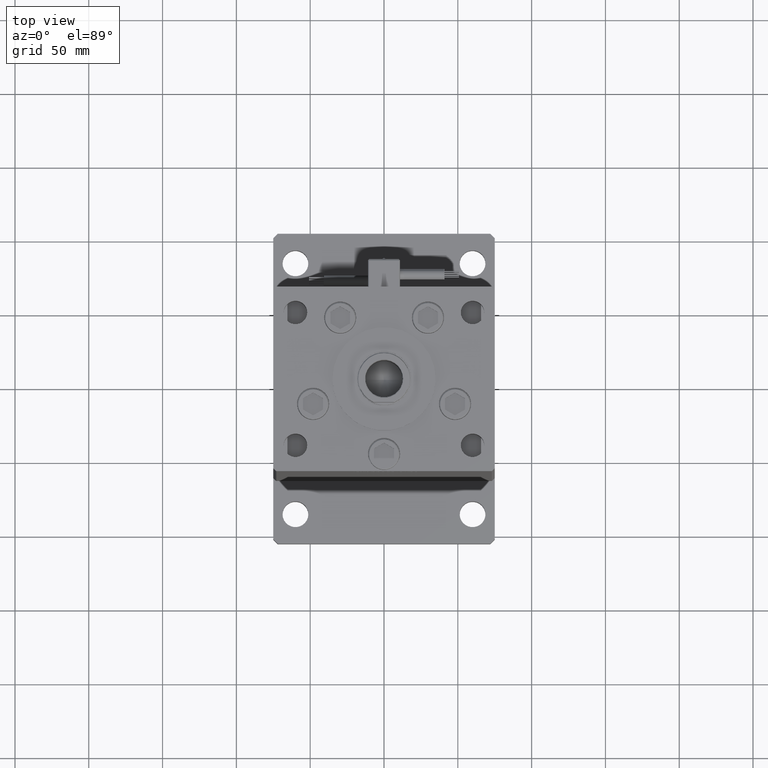
[diagram: clean part render]
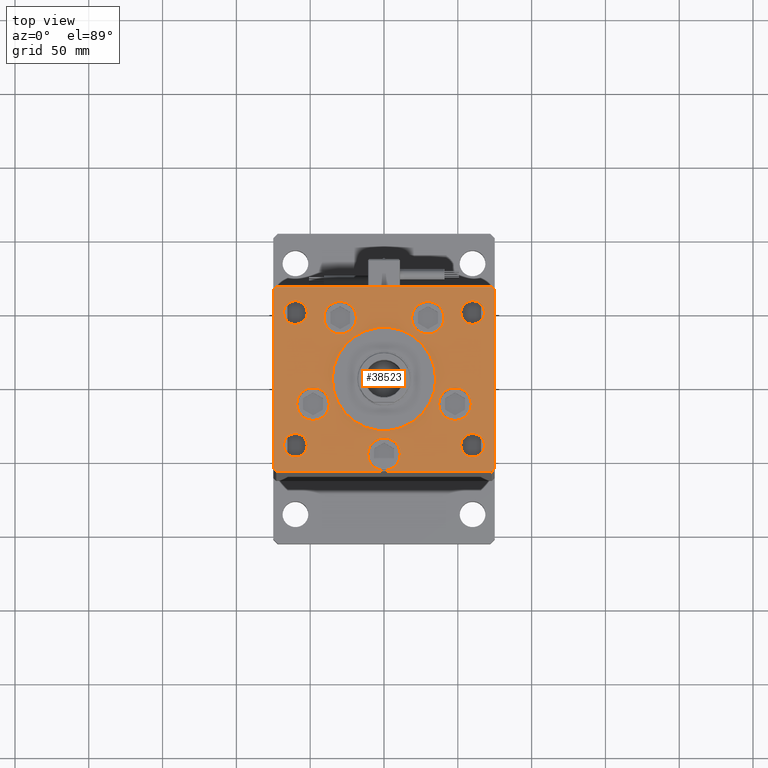
[diagram: same view with one face highlighted and labeled with its STEP entity id]
A machine part, top view. The second image highlights one B-rep face of the part: STEP entity #38523.
In plain terms, the highlighted planar face has unit normal (0, 0, 1).
Its self-contained STEP definition (entity closure, byte-faithful):
#758 = ORIENTED_EDGE ( 'NONE', *, *, #56208, .T. ) ;
#818 = ORIENTED_EDGE ( 'NONE', *, *, #35380, .F. ) ;
#835 = CARTESIAN_POINT ( 'NONE',  ( 52.00000000000000000, -45.00000000000000000, 0.000000000000000000 ) ) ;
#949 = CARTESIAN_POINT ( 'NONE',  ( 11.00000000000000000, -51.00000000000000000, 0.000000000000000000 ) ) ;
#1293 = DIRECTION ( 'NONE',  ( 1.000000000000000000, 0.000000000000000000, 0.000000000000000000 ) ) ;
#1440 = LINE ( 'NONE', #18929, #15699 ) ;
#1543 = VERTEX_POINT ( 'NONE', #51604 ) ;
#1990 = EDGE_LOOP ( 'NONE', ( #51308, #6658 ) ) ;
#2555 = CARTESIAN_POINT ( 'NONE',  ( 18.73102073172061921, 41.43749999999997868, 0.000000000000000000 ) ) ;
#2617 = DIRECTION ( 'NONE',  ( 1.000000000000000000, 0.000000000000000000, 0.000000000000000000 ) ) ;
#2886 = EDGE_CURVE ( 'NONE', #8877, #55956, #22621, .T. ) ;
#3053 = EDGE_CURVE ( 'NONE', #32373, #4239, #26296, .T. ) ;
#3585 = CARTESIAN_POINT ( 'NONE',  ( -37.08326112068522917, -16.99999999999998934, 0.000000000000000000 ) ) ;
#3733 = VERTEX_POINT ( 'NONE', #33363 ) ;
#3745 = DIRECTION ( 'NONE',  ( 0.000000000000000000, 0.000000000000000000, 1.000000000000000000 ) ) ;
#3914 = DIRECTION ( 'NONE',  ( -0.7071067811865524577, 0.7071067811865426878, 0.000000000000000000 ) ) ;
#3916 = VECTOR ( 'NONE', #5568, 1000.000000000000114 ) ;
#3939 = VECTOR ( 'NONE', #30872, 999.9999999999998863 ) ;
#3981 = CARTESIAN_POINT ( 'NONE',  ( -48.08326112068523628, -16.99999999999998934, 0.000000000000000000 ) ) ;
#4239 = VERTEX_POINT ( 'NONE', #32583 ) ;
#4536 = DIRECTION ( 'NONE',  ( 0.000000000000000000, 0.000000000000000000, 1.000000000000000000 ) ) ;
#5568 = DIRECTION ( 'NONE',  ( 0.7071067811865474617, -0.7071067811865474617, 0.000000000000000000 ) ) ;
#5718 = DIRECTION ( 'NONE',  ( -0.000000000000000000, -0.000000000000000000, -1.000000000000000000 ) ) ;
#6478 = CARTESIAN_POINT ( 'NONE',  ( -59.08326112068523628, -16.99999999999998934, 0.000000000000000000 ) ) ;
#6521 = EDGE_LOOP ( 'NONE', ( #36795, #47294 ) ) ;
#6658 = ORIENTED_EDGE ( 'NONE', *, *, #37203, .F. ) ;
#6672 = DIRECTION ( 'NONE',  ( 1.000000000000000000, 0.000000000000000000, 0.000000000000000000 ) ) ;
#6683 = EDGE_CURVE ( 'NONE', #15116, #26562, #36676, .T. ) ;
#7123 = CARTESIAN_POINT ( 'NONE',  ( -60.00000000000000711, -45.00000000000000000, 0.000000000000000000 ) ) ;
#7825 = EDGE_CURVE ( 'NONE', #34325, #54697, #34695, .T. ) ;
#8105 = CARTESIAN_POINT ( 'NONE',  ( 35.00000000000000711, -2.652630106891490698E-15, 0.000000000000000000 ) ) ;
#8255 = CARTESIAN_POINT ( 'NONE',  ( 73.00000000000001421, -62.49999999999991473, 0.000000000000000000 ) ) ;
#8545 = CIRCLE ( 'NONE', #56111, 11.00000000000000000 ) ;
#8877 = VERTEX_POINT ( 'NONE', #2555 ) ;
#9293 = EDGE_LOOP ( 'NONE', ( #44743, #33886 ) ) ;
#9300 = CARTESIAN_POINT ( 'NONE',  ( -75.00000000000000000, -60.50000000000004263, 0.000000000000000000 ) ) ;
#9452 = ORIENTED_EDGE ( 'NONE', *, *, #17382, .T. ) ;
#9572 = VERTEX_POINT ( 'NONE', #11586 ) ;
#9763 = DIRECTION ( 'NONE',  ( 0.000000000000000000, 0.000000000000000000, 1.000000000000000000 ) ) ;
#9867 = DIRECTION ( 'NONE',  ( 0.000000000000000000, 0.000000000000000000, 1.000000000000000000 ) ) ;
#10285 = DIRECTION ( 'NONE',  ( 1.000000000000000000, 0.000000000000000000, 0.000000000000000000 ) ) ;
#10360 = DIRECTION ( 'NONE',  ( -0.000000000000000000, -0.000000000000000000, -1.000000000000000000 ) ) ;
#10563 = CARTESIAN_POINT ( 'NONE',  ( -52.00000000000000000, 45.00000000000000711, 0.000000000000000000 ) ) ;
#10588 = AXIS2_PLACEMENT_3D ( 'NONE', #52148, #3745, #12364 ) ;
#11140 = CIRCLE ( 'NONE', #43152, 8.000000000000000000 ) ;
#11233 = CARTESIAN_POINT ( 'NONE',  ( -60.00000000000000000, 45.00000000000000711, 0.000000000000000000 ) ) ;
#11586 = CARTESIAN_POINT ( 'NONE',  ( -72.99999999999998579, 62.49999999999997158, 0.000000000000000000 ) ) ;
#11625 = ORIENTED_EDGE ( 'NONE', *, *, #39180, .T. ) ;
#11871 = AXIS2_PLACEMENT_3D ( 'NONE', #3981, #4536, #38943 ) ;
#11877 = EDGE_CURVE ( 'NONE', #27427, #35864, #1440, .T. ) ;
#12019 = DIRECTION ( 'NONE',  ( 1.000000000000000000, 0.000000000000000000, 0.000000000000000000 ) ) ;
#12313 = AXIS2_PLACEMENT_3D ( 'NONE', #27677, #33395, #45998 ) ;
#12364 = DIRECTION ( 'NONE',  ( 1.000000000000000000, 0.000000000000000000, 0.000000000000000000 ) ) ;
#12716 = CIRCLE ( 'NONE', #20058, 11.00000000000000355 ) ;
#13674 = AXIS2_PLACEMENT_3D ( 'NONE', #33797, #51255, #12019 ) ;
#14049 = ORIENTED_EDGE ( 'NONE', *, *, #38166, .T. ) ;
#14344 = CARTESIAN_POINT ( 'NONE',  ( 73.00000000000001421, -62.49999999999991473, 0.000000000000000000 ) ) ;
#14453 = EDGE_LOOP ( 'NONE', ( #818, #17891 ) ) ;
#14457 = VERTEX_POINT ( 'NONE', #50856 ) ;
#14596 = DIRECTION ( 'NONE',  ( 0.000000000000000000, 0.000000000000000000, 1.000000000000000000 ) ) ;
#14813 = CARTESIAN_POINT ( 'NONE',  ( -52.00000000000000711, -45.00000000000000000, 0.000000000000000000 ) ) ;
#15116 = VERTEX_POINT ( 'NONE', #35787 ) ;
#15239 = CARTESIAN_POINT ( 'NONE',  ( -60.00000000000000000, 45.00000000000000711, 0.000000000000000000 ) ) ;
#15268 = CIRCLE ( 'NONE', #39939, 11.00000000000000000 ) ;
#15379 = VERTEX_POINT ( 'NONE', #6478 ) ;
#15542 = DIRECTION ( 'NONE',  ( -0.000000000000000000, -0.000000000000000000, -1.000000000000000000 ) ) ;
#15651 = AXIS2_PLACEMENT_3D ( 'NONE', #28150, #28441, #6672 ) ;
#15699 = VECTOR ( 'NONE', #36410, 1000.000000000000000 ) ;
#15704 = CARTESIAN_POINT ( 'NONE',  ( -73.00000000000001421, -62.50000000000002842, 0.000000000000000000 ) ) ;
#15783 = AXIS2_PLACEMENT_3D ( 'NONE', #42254, #45692, #33386 ) ;
#15939 = EDGE_CURVE ( 'NONE', #26053, #19676, #33029, .T. ) ;
#15963 = FACE_BOUND ( 'NONE', #1990, .T. ) ;
#16098 = CARTESIAN_POINT ( 'NONE',  ( -60.00000000000000711, -45.00000000000000000, 0.000000000000000000 ) ) ;
#16235 = DIRECTION ( 'NONE',  ( 1.000000000000000000, 0.000000000000000000, 0.000000000000000000 ) ) ;
#16925 = VERTEX_POINT ( 'NONE', #835 ) ;
#16964 = EDGE_CURVE ( 'NONE', #1543, #48955, #21189, .T. ) ;
#17097 = DIRECTION ( 'NONE',  ( 1.000000000000000000, 0.000000000000000000, 0.000000000000000000 ) ) ;
#17100 = CARTESIAN_POINT ( 'NONE',  ( 73.00000000000001421, 62.50000000000000000, 0.000000000000000000 ) ) ;
#17343 = AXIS2_PLACEMENT_3D ( 'NONE', #18798, #35423, #27108 ) ;
#17382 = EDGE_CURVE ( 'NONE', #35629, #15116, #34616, .T. ) ;
#17384 = LINE ( 'NONE', #21952, #26112 ) ;
#17746 = CARTESIAN_POINT ( 'NONE',  ( -73.00000000000001421, -62.50000000000002842, 0.000000000000000000 ) ) ;
#17891 = ORIENTED_EDGE ( 'NONE', *, *, #22405, .F. ) ;
#17930 = DIRECTION ( 'NONE',  ( 0.000000000000000000, 0.000000000000000000, 1.000000000000000000 ) ) ;
#18480 = CARTESIAN_POINT ( 'NONE',  ( 0.000000000000000000, -51.00000000000000000, 0.000000000000000000 ) ) ;
#18619 = CARTESIAN_POINT ( 'NONE',  ( 75.00000000000001421, 60.50000000000002842, 0.000000000000000000 ) ) ;
#18779 = EDGE_LOOP ( 'NONE', ( #39859, #48753 ) ) ;
#18798 = CARTESIAN_POINT ( 'NONE',  ( 60.00000000000000000, 45.00000000000000000, 0.000000000000000000 ) ) ;
#18925 = EDGE_CURVE ( 'NONE', #55956, #8877, #40332, .T. ) ;
#18929 = CARTESIAN_POINT ( 'NONE',  ( -75.00000000000000000, 60.50000000000000000, 0.000000000000000000 ) ) ;
#19458 = VERTEX_POINT ( 'NONE', #8105 ) ;
#19676 = VERTEX_POINT ( 'NONE', #10563 ) ;
#20058 = AXIS2_PLACEMENT_3D ( 'NONE', #49429, #17930, #1293 ) ;
#20087 = ORIENTED_EDGE ( 'NONE', *, *, #6683, .T. ) ;
#20265 = VECTOR ( 'NONE', #23193, 1000.000000000000000 ) ;
#20525 = FACE_BOUND ( 'NONE', #18779, .T. ) ;
#21082 = FACE_BOUND ( 'NONE', #32051, .T. ) ;
#21189 = CIRCLE ( 'NONE', #53150, 11.00000000000000355 ) ;
#21281 = EDGE_CURVE ( 'NONE', #33160, #16925, #46842, .T. ) ;
#21438 = EDGE_LOOP ( 'NONE', ( #49881, #25277, #9452, #20087, #14049, #25017, #758, #37811 ) ) ;
#21500 = DIRECTION ( 'NONE',  ( 1.000000000000000000, 0.000000000000000000, 0.000000000000000000 ) ) ;
#21952 = CARTESIAN_POINT ( 'NONE',  ( 75.00000000000001421, 60.50000000000002842, 0.000000000000000000 ) ) ;
#21994 = VERTEX_POINT ( 'NONE', #23159 ) ;
#22124 = ORIENTED_EDGE ( 'NONE', *, *, #50156, .F. ) ;
#22405 = EDGE_CURVE ( 'NONE', #19458, #14457, #55101, .T. ) ;
#22621 = CIRCLE ( 'NONE', #53736, 11.00000000000000355 ) ;
#23159 = CARTESIAN_POINT ( 'NONE',  ( 68.00000000000000000, 45.00000000000000000, 0.000000000000000000 ) ) ;
#23193 = DIRECTION ( 'NONE',  ( 1.000000000000000000, 7.604267291953125828E-16, 0.000000000000000000 ) ) ;
#23625 = ORIENTED_EDGE ( 'NONE', *, *, #18925, .F. ) ;
#23775 = CIRCLE ( 'NONE', #11871, 11.00000000000000355 ) ;
#24066 = CARTESIAN_POINT ( 'NONE',  ( 75.00000000000001421, -60.49999999999992184, 0.000000000000000000 ) ) ;
#24947 = EDGE_CURVE ( 'NONE', #44335, #35629, #36080, .T. ) ;
#25017 = ORIENTED_EDGE ( 'NONE', *, *, #45436, .T. ) ;
#25113 = EDGE_CURVE ( 'NONE', #4239, #32373, #11140, .T. ) ;
#25273 = CIRCLE ( 'NONE', #28030, 8.000000000000007105 ) ;
#25277 = ORIENTED_EDGE ( 'NONE', *, *, #24947, .T. ) ;
#25305 = EDGE_LOOP ( 'NONE', ( #56117, #46182 ) ) ;
#25437 = EDGE_LOOP ( 'NONE', ( #22124, #51926 ) ) ;
#26053 = VERTEX_POINT ( 'NONE', #56362 ) ;
#26112 = VECTOR ( 'NONE', #3914, 1000.000000000000000 ) ;
#26196 = CARTESIAN_POINT ( 'NONE',  ( -75.00000000000000000, 60.50000000000000000, 0.000000000000000000 ) ) ;
#26296 = CIRCLE ( 'NONE', #44582, 8.000000000000000000 ) ;
#26349 = VERTEX_POINT ( 'NONE', #29111 ) ;
#26414 = VECTOR ( 'NONE', #32084, 1000.000000000000000 ) ;
#26562 = VERTEX_POINT ( 'NONE', #18619 ) ;
#27108 = DIRECTION ( 'NONE',  ( 1.000000000000000000, 0.000000000000000000, 0.000000000000000000 ) ) ;
#27137 = EDGE_LOOP ( 'NONE', ( #11625, #49038 ) ) ;
#27222 = CARTESIAN_POINT ( 'NONE',  ( -72.99999999999998579, 62.49999999999997158, 0.000000000000000000 ) ) ;
#27427 = VERTEX_POINT ( 'NONE', #26196 ) ;
#27493 = VECTOR ( 'NONE', #40968, 1000.000000000000000 ) ;
#27561 = DIRECTION ( 'NONE',  ( -1.000000000000000000, 0.000000000000000000, 0.000000000000000000 ) ) ;
#27677 = CARTESIAN_POINT ( 'NONE',  ( -29.73102073172061921, 41.43749999999997868, 0.000000000000000000 ) ) ;
#27941 = AXIS2_PLACEMENT_3D ( 'NONE', #44162, #9763, #39586 ) ;
#28030 = AXIS2_PLACEMENT_3D ( 'NONE', #51329, #41408, #41692 ) ;
#28150 = CARTESIAN_POINT ( 'NONE',  ( 29.73102073172061921, 41.43749999999997868, 0.000000000000000000 ) ) ;
#28326 = VERTEX_POINT ( 'NONE', #3585 ) ;
#28415 = EDGE_CURVE ( 'NONE', #35864, #44335, #43966, .T. ) ;
#28441 = DIRECTION ( 'NONE',  ( 0.000000000000000000, 0.000000000000000000, 1.000000000000000000 ) ) ;
#29111 = CARTESIAN_POINT ( 'NONE',  ( 51.99999999999999289, 45.00000000000000000, 0.000000000000000000 ) ) ;
#29340 = EDGE_CURVE ( 'NONE', #54697, #34325, #8545, .T. ) ;
#29352 = CARTESIAN_POINT ( 'NONE',  ( 48.08326112068523628, -16.99999999999998934, 0.000000000000000000 ) ) ;
#29682 = FACE_BOUND ( 'NONE', #27137, .T. ) ;
#29712 = DIRECTION ( 'NONE',  ( 0.000000000000000000, 0.000000000000000000, 1.000000000000000000 ) ) ;
#30779 = AXIS2_PLACEMENT_3D ( 'NONE', #29352, #56252, #34489 ) ;
#30872 = DIRECTION ( 'NONE',  ( 0.7071067811865489050, 0.7071067811865462405, 0.000000000000000000 ) ) ;
#31252 = AXIS2_PLACEMENT_3D ( 'NONE', #44976, #5718, #44393 ) ;
#32051 = EDGE_LOOP ( 'NONE', ( #23625, #50519 ) ) ;
#32084 = DIRECTION ( 'NONE',  ( 0.000000000000000000, 1.000000000000000000, 0.000000000000000000 ) ) ;
#32308 = EDGE_LOOP ( 'NONE', ( #38504, #47424 ) ) ;
#32373 = VERTEX_POINT ( 'NONE', #14813 ) ;
#32583 = CARTESIAN_POINT ( 'NONE',  ( -68.00000000000000000, -45.00000000000000000, 0.000000000000000000 ) ) ;
#33029 = CIRCLE ( 'NONE', #46764, 7.999999999999992895 ) ;
#33123 = EDGE_CURVE ( 'NONE', #37297, #42636, #43430, .T. ) ;
#33160 = VERTEX_POINT ( 'NONE', #36553 ) ;
#33363 = CARTESIAN_POINT ( 'NONE',  ( 73.00000000000001421, 62.50000000000000000, 0.000000000000000000 ) ) ;
#33386 = DIRECTION ( 'NONE',  ( 1.000000000000000000, 0.000000000000000000, 0.000000000000000000 ) ) ;
#33395 = DIRECTION ( 'NONE',  ( 0.000000000000000000, 0.000000000000000000, 1.000000000000000000 ) ) ;
#33562 = CARTESIAN_POINT ( 'NONE',  ( 37.08326112068522917, -16.99999999999998934, 0.000000000000000000 ) ) ;
#33797 = CARTESIAN_POINT ( 'NONE',  ( 0.000000000000000000, -51.00000000000000000, 0.000000000000000000 ) ) ;
#33886 = ORIENTED_EDGE ( 'NONE', *, *, #52672, .F. ) ;
#33988 = FACE_BOUND ( 'NONE', #32308, .T. ) ;
#34325 = VERTEX_POINT ( 'NONE', #949 ) ;
#34469 = EDGE_CURVE ( 'NONE', #26349, #21994, #52612, .T. ) ;
#34489 = DIRECTION ( 'NONE',  ( 1.000000000000000000, 0.000000000000000000, 0.000000000000000000 ) ) ;
#34616 = LINE ( 'NONE', #8255, #3939 ) ;
#34695 = CIRCLE ( 'NONE', #13674, 11.00000000000000000 ) ;
#35286 = CIRCLE ( 'NONE', #10588, 35.00000000000000711 ) ;
#35380 = EDGE_CURVE ( 'NONE', #14457, #19458, #35286, .T. ) ;
#35423 = DIRECTION ( 'NONE',  ( 0.000000000000000000, 0.000000000000000000, 1.000000000000000000 ) ) ;
#35525 = CARTESIAN_POINT ( 'NONE',  ( 48.08326112068523628, -16.99999999999998934, 0.000000000000000000 ) ) ;
#35629 = VERTEX_POINT ( 'NONE', #14344 ) ;
#35787 = CARTESIAN_POINT ( 'NONE',  ( 75.00000000000001421, -60.49999999999992184, 0.000000000000000000 ) ) ;
#35864 = VERTEX_POINT ( 'NONE', #47508 ) ;
#36080 = LINE ( 'NONE', #17746, #20265 ) ;
#36178 = CARTESIAN_POINT ( 'NONE',  ( 40.73102073172061921, 41.43749999999997868, 0.000000000000000000 ) ) ;
#36352 = EDGE_CURVE ( 'NONE', #16925, #33160, #25273, .T. ) ;
#36393 = LINE ( 'NONE', #27222, #27493 ) ;
#36410 = DIRECTION ( 'NONE',  ( 0.000000000000000000, -1.000000000000000000, 0.000000000000000000 ) ) ;
#36553 = CARTESIAN_POINT ( 'NONE',  ( 68.00000000000000000, -45.00000000000000000, 0.000000000000000000 ) ) ;
#36676 = LINE ( 'NONE', #24066, #26414 ) ;
#36795 = ORIENTED_EDGE ( 'NONE', *, *, #16964, .F. ) ;
#37185 = CIRCLE ( 'NONE', #30779, 11.00000000000000355 ) ;
#37203 = EDGE_CURVE ( 'NONE', #42636, #37297, #15268, .T. ) ;
#37297 = VERTEX_POINT ( 'NONE', #52588 ) ;
#37445 = DIRECTION ( 'NONE',  ( -0.000000000000000000, 0.000000000000000000, 1.000000000000000000 ) ) ;
#37804 = DIRECTION ( 'NONE',  ( 0.000000000000000000, 0.000000000000000000, 1.000000000000000000 ) ) ;
#37811 = ORIENTED_EDGE ( 'NONE', *, *, #11877, .T. ) ;
#37999 = FACE_BOUND ( 'NONE', #14453, .T. ) ;
#38166 = EDGE_CURVE ( 'NONE', #26562, #3733, #17384, .T. ) ;
#38417 = DIRECTION ( 'NONE',  ( 0.000000000000000000, 0.000000000000000000, 1.000000000000000000 ) ) ;
#38504 = ORIENTED_EDGE ( 'NONE', *, *, #21281, .T. ) ;
#38523 = ADVANCED_FACE ( 'NONE', ( #37999, #15963, #21082, #46599, #20525, #55187, #29682, #42575, #47151, #55467, #33988 ), #42302, .T. ) ;
#38943 = DIRECTION ( 'NONE',  ( 1.000000000000000000, 0.000000000000000000, 0.000000000000000000 ) ) ;
#39146 = CARTESIAN_POINT ( 'NONE',  ( -29.73102073172061921, 41.43749999999997868, 0.000000000000000000 ) ) ;
#39180 = EDGE_CURVE ( 'NONE', #19676, #26053, #55447, .T. ) ;
#39586 = DIRECTION ( 'NONE',  ( 1.000000000000000000, 0.000000000000000000, 0.000000000000000000 ) ) ;
#39859 = ORIENTED_EDGE ( 'NONE', *, *, #7825, .F. ) ;
#39939 = AXIS2_PLACEMENT_3D ( 'NONE', #39146, #29712, #17097 ) ;
#40237 = CIRCLE ( 'NONE', #17343, 8.000000000000007105 ) ;
#40244 = DIRECTION ( 'NONE',  ( 1.000000000000000000, 0.000000000000000000, 0.000000000000000000 ) ) ;
#40332 = CIRCLE ( 'NONE', #15651, 11.00000000000000355 ) ;
#40826 = EDGE_CURVE ( 'NONE', #48955, #1543, #37185, .T. ) ;
#40968 = DIRECTION ( 'NONE',  ( -0.7071067811865549002, -0.7071067811865401342, 0.000000000000000000 ) ) ;
#41408 = DIRECTION ( 'NONE',  ( -0.000000000000000000, -0.000000000000000000, -1.000000000000000000 ) ) ;
#41692 = DIRECTION ( 'NONE',  ( -1.000000000000000000, 0.000000000000000000, 0.000000000000000000 ) ) ;
#42254 = CARTESIAN_POINT ( 'NONE',  ( 0.000000000000000000, -6.938893903907228378E-15, 0.000000000000000000 ) ) ;
#42302 = PLANE ( 'NONE',  #46258 ) ;
#42575 = FACE_BOUND ( 'NONE', #25437, .T. ) ;
#42636 = VERTEX_POINT ( 'NONE', #46949 ) ;
#42849 = VECTOR ( 'NONE', #51476, 1000.000000000000000 ) ;
#43152 = AXIS2_PLACEMENT_3D ( 'NONE', #7123, #14596, #10285 ) ;
#43430 = CIRCLE ( 'NONE', #12313, 11.00000000000000000 ) ;
#43823 = DIRECTION ( 'NONE',  ( 0.000000000000000000, 0.000000000000000000, 1.000000000000000000 ) ) ;
#43966 = LINE ( 'NONE', #9300, #3916 ) ;
#44111 = DIRECTION ( 'NONE',  ( 1.000000000000000000, 0.000000000000000000, 0.000000000000000000 ) ) ;
#44162 = CARTESIAN_POINT ( 'NONE',  ( 60.00000000000000000, 45.00000000000000000, 0.000000000000000000 ) ) ;
#44302 = CARTESIAN_POINT ( 'NONE',  ( -11.00000000000000000, -51.00000000000000000, 0.000000000000000000 ) ) ;
#44335 = VERTEX_POINT ( 'NONE', #15704 ) ;
#44393 = DIRECTION ( 'NONE',  ( -1.000000000000000000, 0.000000000000000000, 0.000000000000000000 ) ) ;
#44582 = AXIS2_PLACEMENT_3D ( 'NONE', #16098, #43823, #44111 ) ;
#44743 = ORIENTED_EDGE ( 'NONE', *, *, #49794, .F. ) ;
#44976 = CARTESIAN_POINT ( 'NONE',  ( 60.00000000000000711, -45.00000000000000000, 0.000000000000000000 ) ) ;
#45436 = EDGE_CURVE ( 'NONE', #3733, #9572, #55776, .T. ) ;
#45692 = DIRECTION ( 'NONE',  ( 0.000000000000000000, 0.000000000000000000, 1.000000000000000000 ) ) ;
#45901 = DIRECTION ( 'NONE',  ( -1.000000000000000000, 0.000000000000000000, 0.000000000000000000 ) ) ;
#45998 = DIRECTION ( 'NONE',  ( 1.000000000000000000, 0.000000000000000000, 0.000000000000000000 ) ) ;
#46182 = ORIENTED_EDGE ( 'NONE', *, *, #25113, .F. ) ;
#46258 = AXIS2_PLACEMENT_3D ( 'NONE', #54906, #37445, #16235 ) ;
#46599 = FACE_BOUND ( 'NONE', #6521, .T. ) ;
#46737 = CARTESIAN_POINT ( 'NONE',  ( 29.73102073172061921, 41.43749999999997868, 0.000000000000000000 ) ) ;
#46764 = AXIS2_PLACEMENT_3D ( 'NONE', #15239, #10360, #27561 ) ;
#46842 = CIRCLE ( 'NONE', #31252, 8.000000000000007105 ) ;
#46949 = CARTESIAN_POINT ( 'NONE',  ( -40.73102073172061921, 41.43749999999997868, 0.000000000000000000 ) ) ;
#47151 = FACE_BOUND ( 'NONE', #25305, .T. ) ;
#47294 = ORIENTED_EDGE ( 'NONE', *, *, #40826, .F. ) ;
#47424 = ORIENTED_EDGE ( 'NONE', *, *, #36352, .T. ) ;
#47508 = CARTESIAN_POINT ( 'NONE',  ( -75.00000000000000000, -60.50000000000004263, 0.000000000000000000 ) ) ;
#48753 = ORIENTED_EDGE ( 'NONE', *, *, #29340, .F. ) ;
#48955 = VERTEX_POINT ( 'NONE', #33562 ) ;
#49038 = ORIENTED_EDGE ( 'NONE', *, *, #15939, .T. ) ;
#49429 = CARTESIAN_POINT ( 'NONE',  ( -48.08326112068523628, -16.99999999999998934, 0.000000000000000000 ) ) ;
#49794 = EDGE_CURVE ( 'NONE', #28326, #15379, #23775, .T. ) ;
#49881 = ORIENTED_EDGE ( 'NONE', *, *, #28415, .T. ) ;
#50156 = EDGE_CURVE ( 'NONE', #21994, #26349, #40237, .T. ) ;
#50519 = ORIENTED_EDGE ( 'NONE', *, *, #2886, .F. ) ;
#50856 = CARTESIAN_POINT ( 'NONE',  ( -35.00000000000000711, -6.938893903907228378E-15, 0.000000000000000000 ) ) ;
#50861 = AXIS2_PLACEMENT_3D ( 'NONE', #11233, #15542, #45901 ) ;
#51255 = DIRECTION ( 'NONE',  ( 0.000000000000000000, 0.000000000000000000, 1.000000000000000000 ) ) ;
#51308 = ORIENTED_EDGE ( 'NONE', *, *, #33123, .F. ) ;
#51329 = CARTESIAN_POINT ( 'NONE',  ( 60.00000000000000711, -45.00000000000000000, 0.000000000000000000 ) ) ;
#51476 = DIRECTION ( 'NONE',  ( -1.000000000000000000, -1.901066822988281950E-16, 0.000000000000000000 ) ) ;
#51604 = CARTESIAN_POINT ( 'NONE',  ( 59.08326112068523628, -16.99999999999998934, 0.000000000000000000 ) ) ;
#51926 = ORIENTED_EDGE ( 'NONE', *, *, #34469, .F. ) ;
#52148 = CARTESIAN_POINT ( 'NONE',  ( 0.000000000000000000, -6.938893903907228378E-15, 0.000000000000000000 ) ) ;
#52588 = CARTESIAN_POINT ( 'NONE',  ( -18.73102073172061921, 41.43749999999997868, 0.000000000000000000 ) ) ;
#52612 = CIRCLE ( 'NONE', #27941, 8.000000000000007105 ) ;
#52672 = EDGE_CURVE ( 'NONE', #15379, #28326, #12716, .T. ) ;
#53150 = AXIS2_PLACEMENT_3D ( 'NONE', #35525, #37804, #21500 ) ;
#53736 = AXIS2_PLACEMENT_3D ( 'NONE', #46737, #38417, #2617 ) ;
#54697 = VERTEX_POINT ( 'NONE', #44302 ) ;
#54906 = CARTESIAN_POINT ( 'NONE',  ( 0.000000000000000000, 0.000000000000000000, 0.000000000000000000 ) ) ;
#55101 = CIRCLE ( 'NONE', #15783, 35.00000000000000711 ) ;
#55187 = FACE_BOUND ( 'NONE', #9293, .T. ) ;
#55447 = CIRCLE ( 'NONE', #50861, 7.999999999999992895 ) ;
#55467 = FACE_OUTER_BOUND ( 'NONE', #21438, .T. ) ;
#55776 = LINE ( 'NONE', #17100, #42849 ) ;
#55956 = VERTEX_POINT ( 'NONE', #36178 ) ;
#56111 = AXIS2_PLACEMENT_3D ( 'NONE', #18480, #9867, #40244 ) ;
#56117 = ORIENTED_EDGE ( 'NONE', *, *, #3053, .F. ) ;
#56208 = EDGE_CURVE ( 'NONE', #9572, #27427, #36393, .T. ) ;
#56252 = DIRECTION ( 'NONE',  ( 0.000000000000000000, 0.000000000000000000, 1.000000000000000000 ) ) ;
#56362 = CARTESIAN_POINT ( 'NONE',  ( -67.99999999999998579, 45.00000000000000711, 0.000000000000000000 ) ) ;